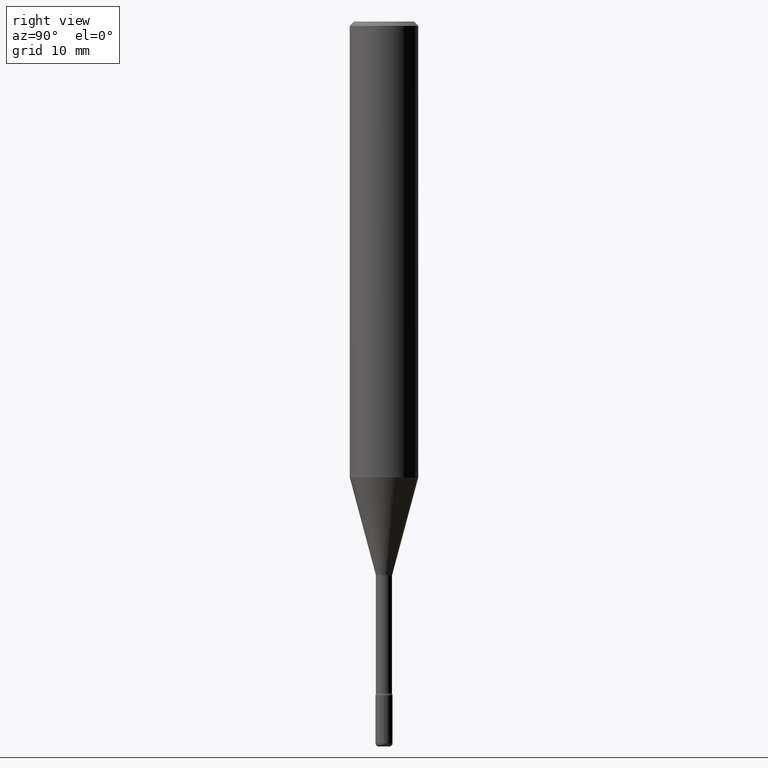
[diagram: clean part render]
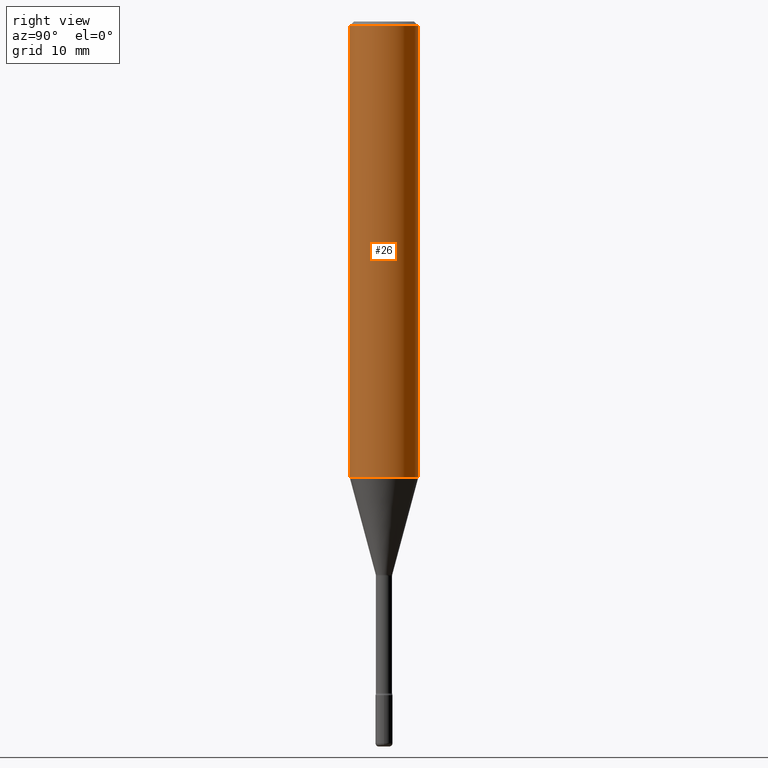
[diagram: same view with one face highlighted and labeled with its STEP entity id]
A machine part, right view. The second image highlights one B-rep face of the part: STEP entity #26.
In plain terms, the highlighted cylindrical surface (edge-blend (fillet) strip) has radius 2.9997 mm, axis along (-0, 0, 1).
Its self-contained STEP definition (entity closure, byte-faithful):
#23 = ORIENTED_EDGE ( 'NONE', *, *, #497, .T. ) ;
#26 = ADVANCED_FACE ( 'NONE', ( #179 ), #318, .T. ) ;
#47 = DIRECTION ( 'NONE',  ( -6.982962677686265922E-15, -1.000000000000000000, 3.491099849961848612E-15 ) ) ;
#53 = CIRCLE ( 'NONE', #481, 0.1180999999999999966 ) ;
#58 = DIRECTION ( 'NONE',  ( -2.445735198447141486E-29, 3.491099849961848612E-15, 1.000000000000000000 ) ) ;
#73 = DIRECTION ( 'NONE',  ( -6.982962677686265922E-15, -1.000000000000000000, 3.487819265831411744E-15 ) ) ;
#93 = AXIS2_PLACEMENT_3D ( 'NONE', #203, #386, #73 ) ;
#105 = ORIENTED_EDGE ( 'NONE', *, *, #362, .F. ) ;
#129 = DIRECTION ( 'NONE',  ( -2.445735198447141206E-29, 3.491099849961848612E-15, 1.000000000000000000 ) ) ;
#179 = FACE_OUTER_BOUND ( 'NONE', #216, .T. ) ;
#187 = VERTEX_POINT ( 'NONE', #373 ) ;
#189 = AXIS2_PLACEMENT_3D ( 'NONE', #364, #58, #47 ) ;
#203 = CARTESIAN_POINT ( 'NONE',  ( 3.668602797670719043E-31, -5.236649774942783100E-17, -0.01500000000000002720 ) ) ;
#216 = EDGE_LOOP ( 'NONE', ( #407, #23, #457, #105 ) ) ;
#217 = CARTESIAN_POINT ( 'NONE',  ( 3.845663783486448442E-29, -5.489390783621017201E-15, -1.572395812076531119 ) ) ;
#253 = LINE ( 'NONE', #435, #301 ) ;
#257 = CARTESIAN_POINT ( 'NONE',  ( 8.391509709327170485E-16, 0.1180999999999999689, -0.01500000000000044006 ) ) ;
#296 = CARTESIAN_POINT ( 'NONE',  ( -8.246878922347479668E-16, -0.1180999999999999966, 8.903722911717403556E-16 ) ) ;
#301 = VECTOR ( 'NONE', #129, 39.37007874015748143 ) ;
#305 = CARTESIAN_POINT ( 'NONE',  ( -8.246878922347096084E-16, -0.1181000000000055200, -1.572395812076530897 ) ) ;
#311 = EDGE_CURVE ( 'NONE', #187, #545, #556, .T. ) ;
#318 = CYLINDRICAL_SURFACE ( 'NONE', #189, 0.1180999999999999966 ) ;
#345 = DIRECTION ( 'NONE',  ( -2.445735198447141486E-29, 3.491099849961848612E-15, 1.000000000000000000 ) ) ;
#358 = CARTESIAN_POINT ( 'NONE',  ( 8.391509709327165554E-16, 0.1180999999999945010, -1.572395812076531563 ) ) ;
#362 = EDGE_CURVE ( 'NONE', #538, #187, #473, .T. ) ;
#364 = CARTESIAN_POINT ( 'NONE',  ( -1.169113584055446105E-44, 1.669184350826100908E-30, 4.780733988912460139E-16 ) ) ;
#373 = CARTESIAN_POINT ( 'NONE',  ( -8.246878922347475723E-16, -0.1181000000000000522, -0.01499999999999961607 ) ) ;
#386 = DIRECTION ( 'NONE',  ( -2.445735198447141486E-29, 3.491099849961848612E-15, 1.000000000000000000 ) ) ;
#393 = DIRECTION ( 'NONE',  ( -2.445735198447141206E-29, 3.491099849961848612E-15, 1.000000000000000000 ) ) ;
#400 = DIRECTION ( 'NONE',  ( -6.982962677686265922E-15, -1.000000000000000000, 4.626330217890369336E-15 ) ) ;
#407 = ORIENTED_EDGE ( 'NONE', *, *, #462, .T. ) ;
#435 = CARTESIAN_POINT ( 'NONE',  ( 8.391509709326781971E-16, 0.1180999999999999966, 6.577450661075172151E-17 ) ) ;
#444 = VECTOR ( 'NONE', #393, 39.37007874015748143 ) ;
#451 = VERTEX_POINT ( 'NONE', #358 ) ;
#457 = ORIENTED_EDGE ( 'NONE', *, *, #311, .F. ) ;
#462 = EDGE_CURVE ( 'NONE', #538, #451, #53, .T. ) ;
#473 = LINE ( 'NONE', #296, #444 ) ;
#481 = AXIS2_PLACEMENT_3D ( 'NONE', #217, #345, #400 ) ;
#497 = EDGE_CURVE ( 'NONE', #451, #545, #253, .T. ) ;
#538 = VERTEX_POINT ( 'NONE', #305 ) ;
#545 = VERTEX_POINT ( 'NONE', #257 ) ;
#556 = CIRCLE ( 'NONE', #93, 0.1180999999999999966 ) ;